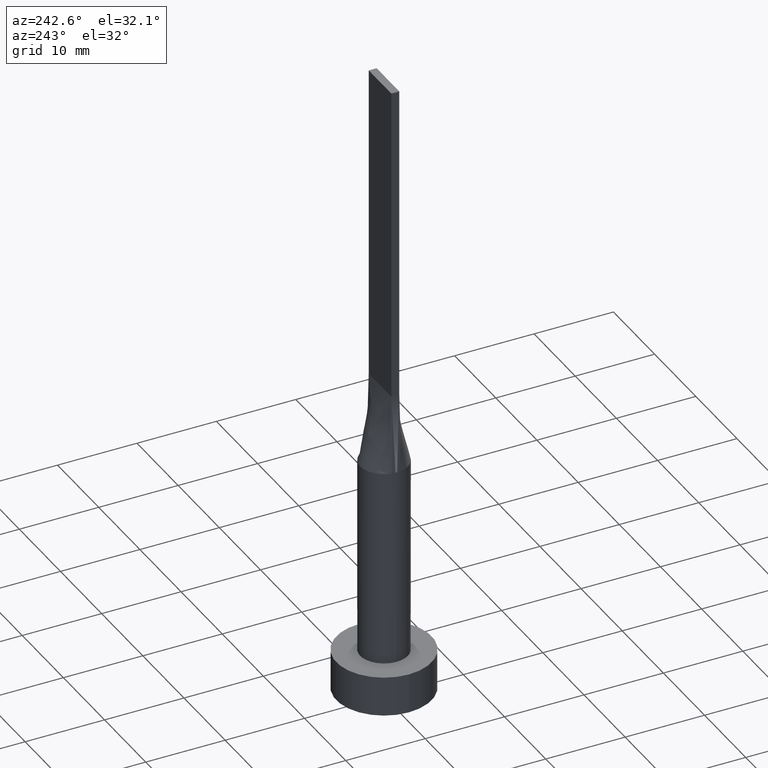
[diagram: clean part render]
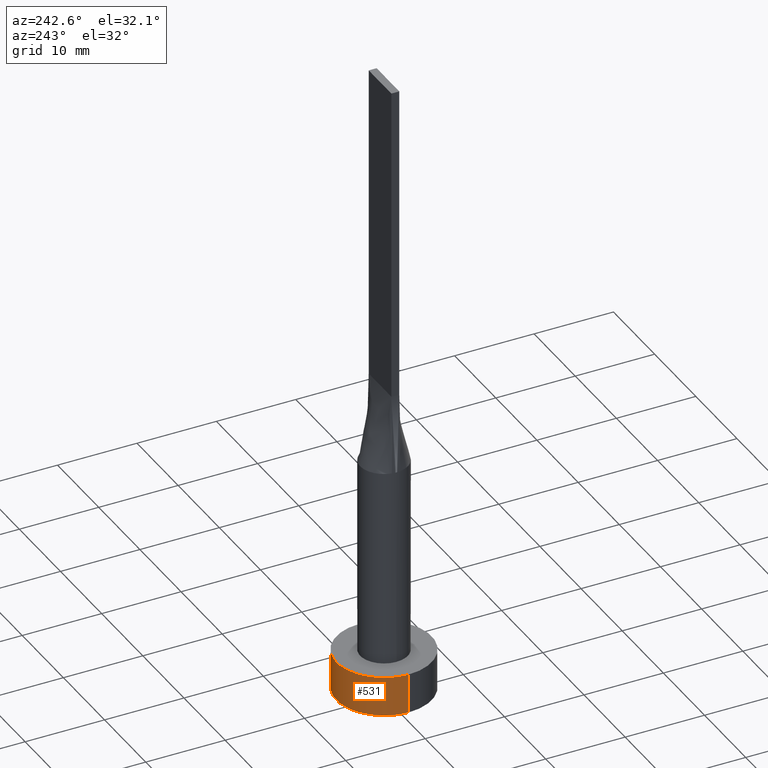
[diagram: same view with one face highlighted and labeled with its STEP entity id]
A machine part, auxiliary view. The second image highlights one B-rep face of the part: STEP entity #531.
In plain terms, the highlighted cylindrical surface (partial cylindrical patch) has radius 6 mm, axis along (-0, -0, -1).
Its self-contained STEP definition (entity closure, byte-faithful):
#1 = CARTESIAN_POINT ( 'NONE',  ( 0.000000000000000000, 0.000000000000000000, 0.000000000000000000 ) ) ;
#25 = CARTESIAN_POINT ( 'NONE',  ( 0.000000000000000000, 0.000000000000000000, 5.000000000000000000 ) ) ;
#27 = VERTEX_POINT ( 'NONE', #405 ) ;
#46 = DIRECTION ( 'NONE',  ( -0.000000000000000000, -0.000000000000000000, -1.000000000000000000 ) ) ;
#49 = EDGE_CURVE ( 'NONE', #27, #257, #76, .T. ) ;
#52 = CARTESIAN_POINT ( 'NONE',  ( 0.000000000000000000, 0.000000000000000000, 5.000000000000000000 ) ) ;
#54 = CARTESIAN_POINT ( 'NONE',  ( -6.000000000000000888, 0.000000000000000000, 5.000000000000000000 ) ) ;
#64 = CARTESIAN_POINT ( 'NONE',  ( 6.000000000000000888, 7.347880794884120722E-16, 0.000000000000000000 ) ) ;
#72 = ORIENTED_EDGE ( 'NONE', *, *, #49, .T. ) ;
#76 = LINE ( 'NONE', #445, #292 ) ;
#113 = ORIENTED_EDGE ( 'NONE', *, *, #570, .F. ) ;
#114 = AXIS2_PLACEMENT_3D ( 'NONE', #1, #579, #376 ) ;
#184 = DIRECTION ( 'NONE',  ( -0.000000000000000000, -0.000000000000000000, -1.000000000000000000 ) ) ;
#208 = DIRECTION ( 'NONE',  ( -0.000000000000000000, -0.000000000000000000, -1.000000000000000000 ) ) ;
#218 = CARTESIAN_POINT ( 'NONE',  ( -6.000000000000000888, 0.000000000000000000, 0.000000000000000000 ) ) ;
#219 = ORIENTED_EDGE ( 'NONE', *, *, #472, .T. ) ;
#231 = FACE_OUTER_BOUND ( 'NONE', #557, .T. ) ;
#244 = AXIS2_PLACEMENT_3D ( 'NONE', #25, #245, #436 ) ;
#245 = DIRECTION ( 'NONE',  ( 0.000000000000000000, 0.000000000000000000, 1.000000000000000000 ) ) ;
#257 = VERTEX_POINT ( 'NONE', #64 ) ;
#292 = VECTOR ( 'NONE', #208, 1000.000000000000000 ) ;
#300 = VERTEX_POINT ( 'NONE', #389 ) ;
#343 = AXIS2_PLACEMENT_3D ( 'NONE', #52, #46, #372 ) ;
#358 = ORIENTED_EDGE ( 'NONE', *, *, #512, .F. ) ;
#372 = DIRECTION ( 'NONE',  ( -1.000000000000000000, 0.000000000000000000, 0.000000000000000000 ) ) ;
#376 = DIRECTION ( 'NONE',  ( 1.000000000000000000, 0.000000000000000000, 0.000000000000000000 ) ) ;
#389 = CARTESIAN_POINT ( 'NONE',  ( -6.000000000000000888, 0.000000000000000000, 5.000000000000000000 ) ) ;
#405 = CARTESIAN_POINT ( 'NONE',  ( 6.000000000000000888, 7.347880794884120722E-16, 5.000000000000000000 ) ) ;
#420 = CIRCLE ( 'NONE', #244, 6.000000000000000888 ) ;
#432 = VERTEX_POINT ( 'NONE', #218 ) ;
#436 = DIRECTION ( 'NONE',  ( 1.000000000000000000, 0.000000000000000000, 0.000000000000000000 ) ) ;
#445 = CARTESIAN_POINT ( 'NONE',  ( 6.000000000000000888, 7.347880794884120722E-16, 5.000000000000000000 ) ) ;
#451 = VECTOR ( 'NONE', #184, 1000.000000000000000 ) ;
#456 = CYLINDRICAL_SURFACE ( 'NONE', #343, 6.000000000000000888 ) ;
#472 = EDGE_CURVE ( 'NONE', #257, #432, #501, .T. ) ;
#501 = CIRCLE ( 'NONE', #114, 6.000000000000000888 ) ;
#503 = LINE ( 'NONE', #54, #451 ) ;
#512 = EDGE_CURVE ( 'NONE', #300, #432, #503, .T. ) ;
#531 = ADVANCED_FACE ( 'NONE', ( #231 ), #456, .T. ) ;
#557 = EDGE_LOOP ( 'NONE', ( #113, #72, #219, #358 ) ) ;
#570 = EDGE_CURVE ( 'NONE', #27, #300, #420, .T. ) ;
#579 = DIRECTION ( 'NONE',  ( 0.000000000000000000, 0.000000000000000000, 1.000000000000000000 ) ) ;